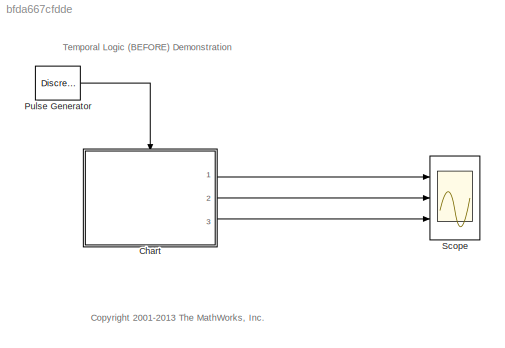
MODEL slx_bfda667cfdde
KIND model
CONFIG AbsTol = auto
CONFIG EnableMultiTasking = on
CONFIG FixedStep = auto
CONFIG MaxStep = .01
CONFIG MinStep = auto
CONFIG RelTol = 1e-3
CONFIG SampleTimeConstraint = Unconstrained
CONFIG Solver = ode45
CONFIG SolverName = ode45
CONFIG StartTime = 0.0
CONFIG StopTime = 20
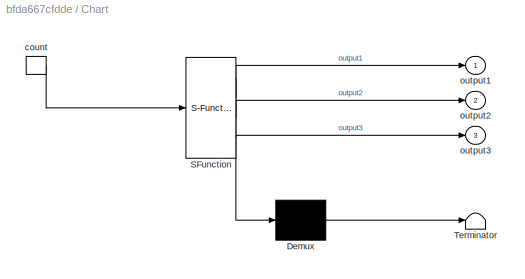
BLOCK [SubSystem] Chart
  ErrorFcn = Stateflow.Translate.translate
  PermitHierarchicalResolution = ExplicitOnly
  Ports = [0, 3, 0, 1]
  RequestExecContextInheritance = off
  SFBlockType = Chart
  TreatAsAtomicUnit = on
  Variant = off
BLOCK [Demux] Chart/ Demux 
  Outputs = 1
  Ports = [1, 1]
BLOCK [S-Function] Chart/ SFunction 
  EnableBusSupport = off
  FunctionName = sf_sfun
  PortCounts = [1 4]
  Ports = [1, 4]
  SFcnIsStateOwnerBlock = off
  SFunctionDeploymentMode = off
  Tag = Stateflow S-Function sf_tlbefore 1
BLOCK [Terminator] Chart/ Terminator 
BLOCK [TriggerPort] Chart/count
  Ports = [0, 1]
  ShowOutputPort = on
  VariantControl = (inherit)
BLOCK [Outport] Chart/output1
  IconDisplay = Port number
BLOCK [Outport] Chart/output2
  IconDisplay = Port number
  Port = 2
BLOCK [Outport] Chart/output3
  IconDisplay = Port number
  Port = 3
BLOCK [DiscretePulseGenerator] Pulse Generator
  Period = 1
  Ports = [0, 1]
  PulseType = Time based
  PulseWidth = 50
BLOCK [Scope] Scope
  NumInputPorts = 3
  Ports = [3]
  ScopeSpecificationString = Simulink.scopes.TimeScopeBlockCfg('CurrentConfiguration', extmgr.ConfigurationSet(extmgr.Configuration('Core','General UI',true),extmgr.Configuration('Core','Source UI',true),extmgr.Configuration('Sources','WiredSimulink',true,'DataLoggingSaveFormat','StructureWithTime'),extmgr.Configuration('Visuals','Time Domain',true,'SerializedDisplays',{struct('MinYLimReal','0','MaxYLimReal','1.25','YLabelRea...<+3095ch>
ANNOTATION (root): <copyright redacted>
ANNOTATION (root): Temporal Logic (BEFORE) Demonstration
LINE Chart:1 -> Scope:1
LINE Chart:2 -> Scope:2
LINE Chart:3 -> Scope:3
LINE Pulse Generator:1 -> Chart:trigger
CHART Chart states=6 transitions=7
  STATE_LABEL 'One'
  STATE_LABEL 'A_state\non count:signal_one = signal_one + 1;'
  STATE_LABEL 'before(10,count)[signal_one<5]{output1=1;}'
  STATE_LABEL 'A_state\non count:signal_one = signal_one + 1;'
  STATE_LABEL 'Two'
  STATE_LABEL 'B_state\non count:signal_two = signal_two + 1;'
  STATE_LABEL 'before(20,count)[signal_two>10]{output2=1;}'
  STATE_LABEL 'B_state\non count:signal_two = signal_two + 1;'
  STATE_LABEL 'Three'
  STATE_LABEL 'C_state\non count:signal_three = signal_three + 1;'
  STATE_LABEL 'before(10,count)[signal_three>11]{output3=1;}'
  STATE_LABEL 'C_state\non count:signal_three = signal_three + 1;'
